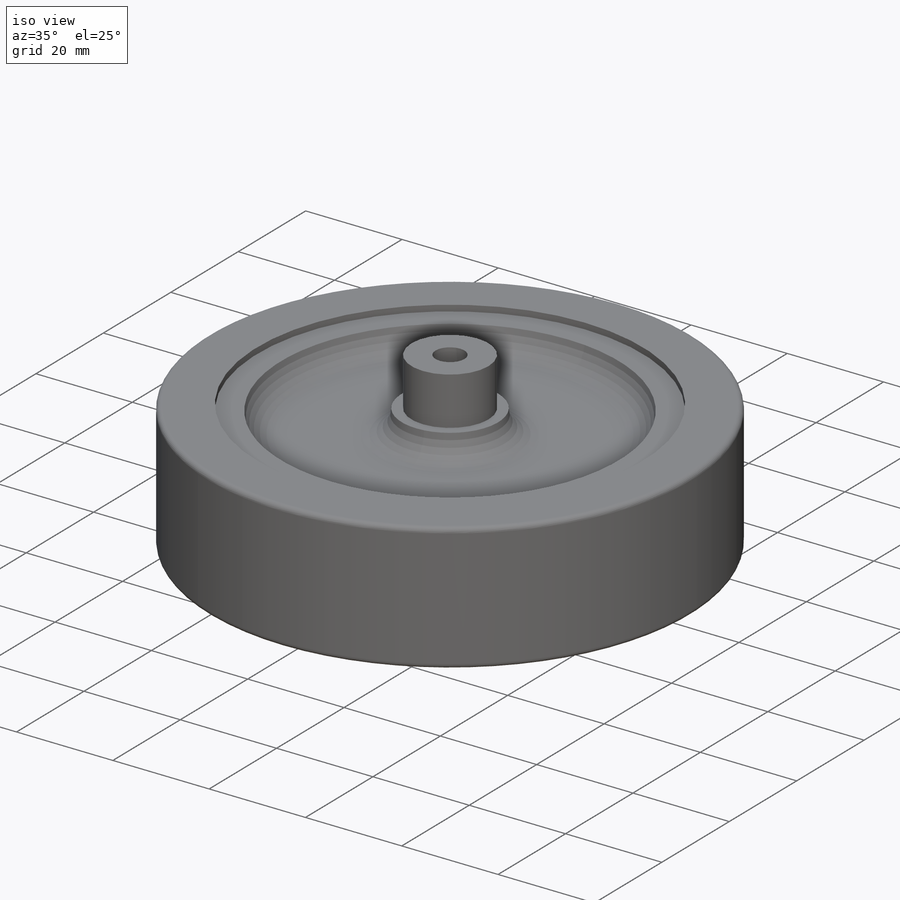
[diagram: iso view]
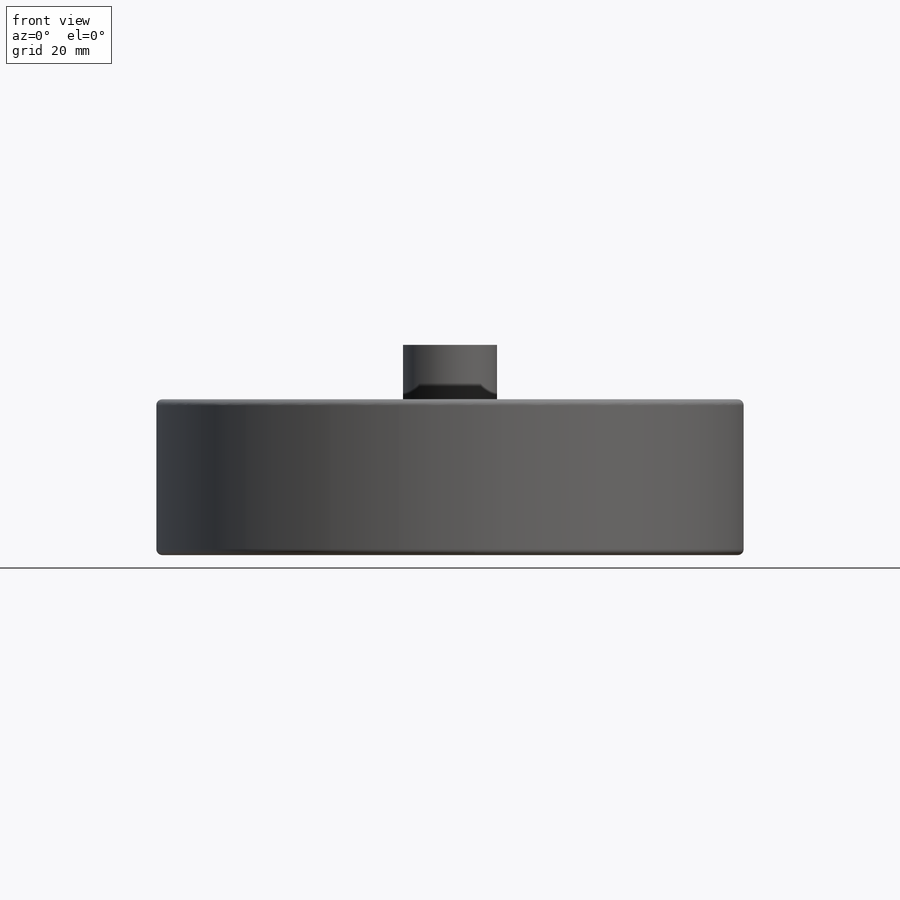
[diagram: front view]
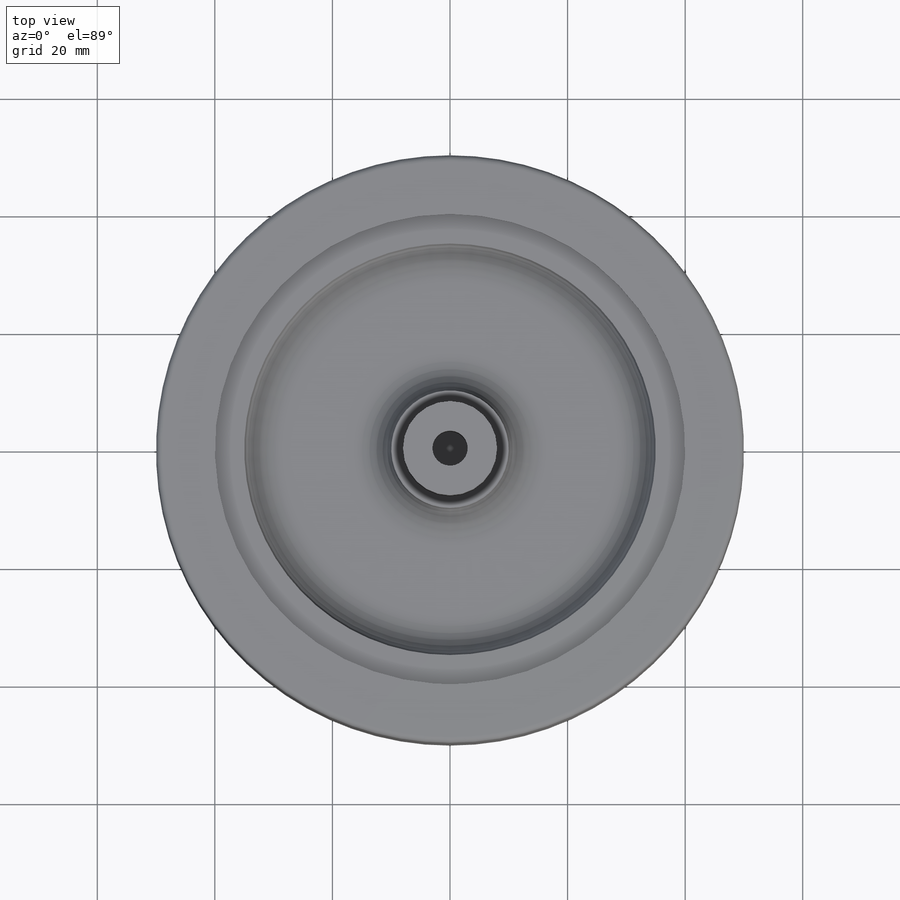
[diagram: top view]
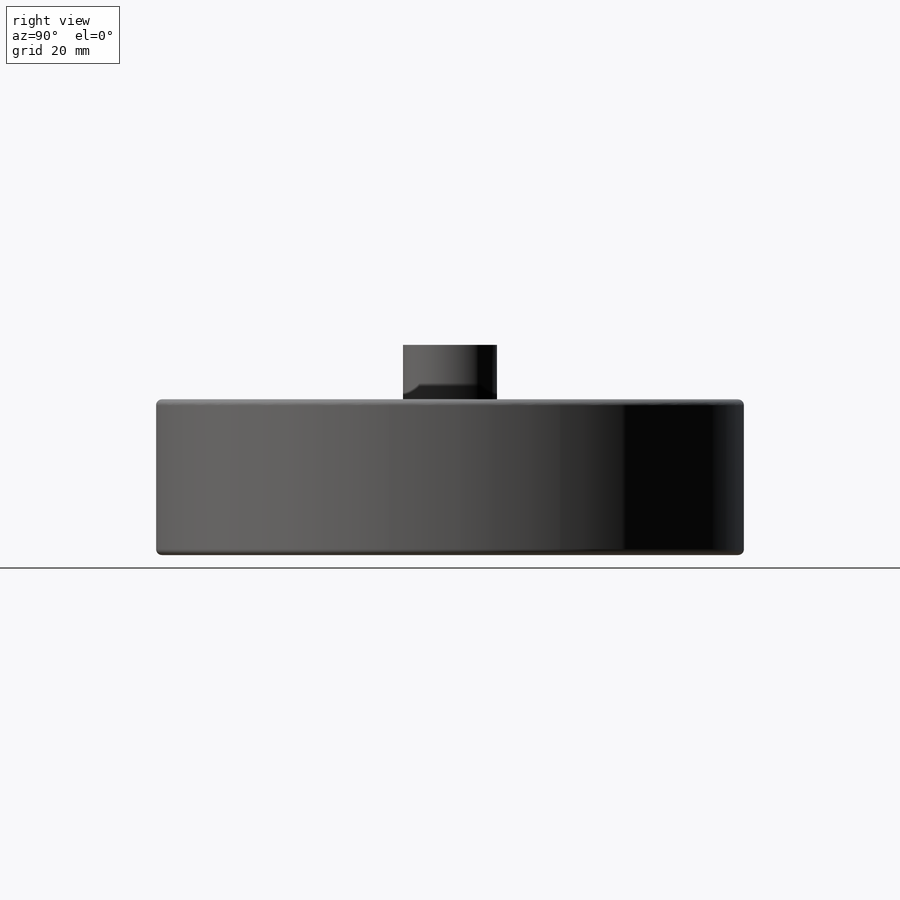
[diagram: right view]
SOLIDWORKS PART (.sldprt)
format: sldprt  version: not decoded by parser v0  size: 283,648 bytes
history: native  units: mm
features: sketch x6, extrude x5, fillet x2, material x1, cut_extrude x1 (+13 scaffold rows collapsed)
feature tree (28):
  scaffold x13  (default folders/planes/origin — collapsed)
  material  "Material <not specified>"
  sketch  "Sketch1"  dims[D1=80.0mm]
  extrude  "Boss-Extrude1"  Depth=26.5mm
  sketch  "Sketch2"  dims[D1=70.0mm]
  extrude  "Boss-Extrude2"  Depth=24mm
  sketch  "Sketch4"  dims[D1=70.0mm]
  extrude  "Boss-Extrude3"  Depth=15mm
  sketch  "Sketch7"
  extrude  "Boss-Extrude4"  Depth=25mm
  fillet  "Fillet1"  Radius=5mm
  sketch  "Sketch10"  dims[D1=17.0mm]
  sketch  "Sketch11"  dims[D1=~5.691854mm]
  extrude  "Boss-Extrude5"  Depth=10mm
  cut_extrude  "Cut-Extrude2"  [1 undecoded]
  fillet  "Fillet2"  Radius=1mm
decode coverage: 12 of 14 modeling features carry decoded parameters
note: ~ marks probable driven/reference dimensions
note: 1 parameter value undecoded
note: suppression state not decoded; provenance and decode notes live in map.json
